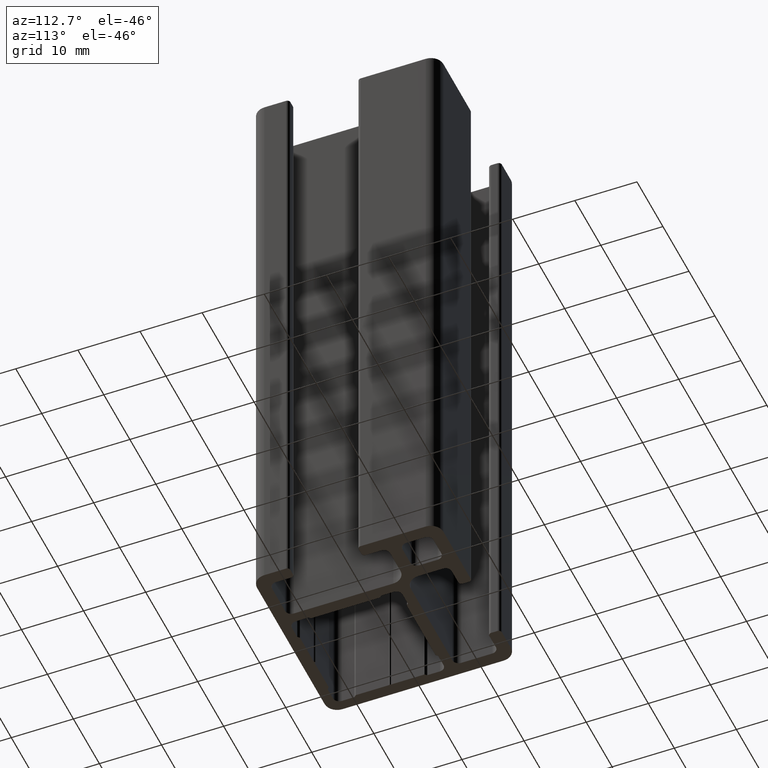
[diagram: clean part render]
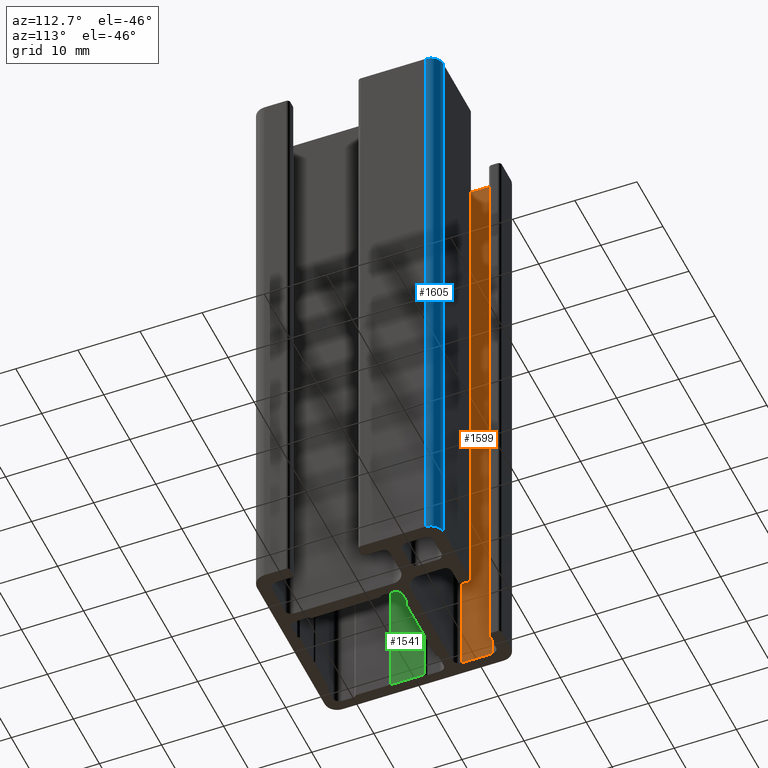
[diagram: same view with three faces highlighted in distinct colors, each labeled with its STEP entity id]
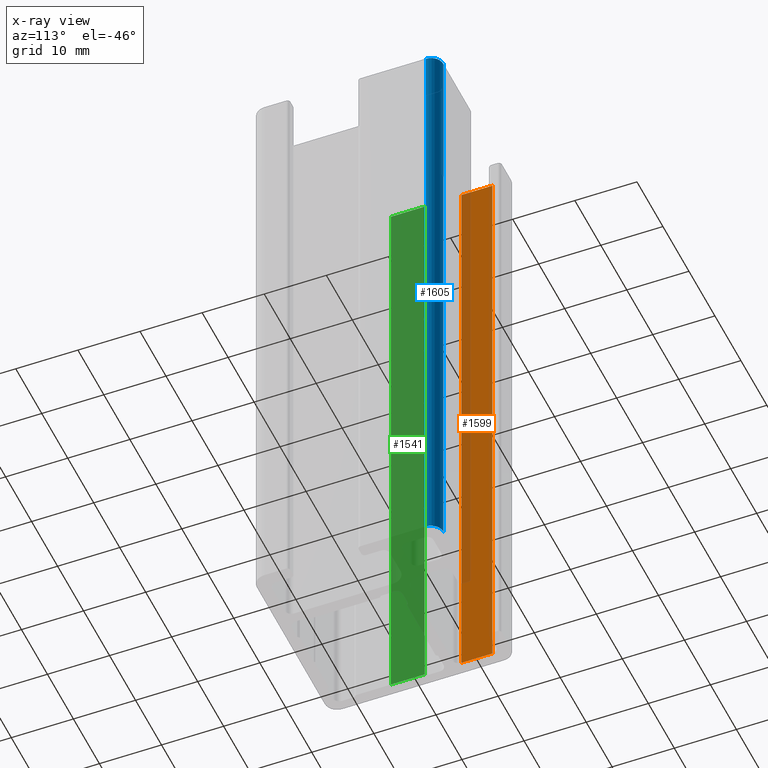
[diagram: x-ray of the same camera — body ghosted, the three highlighted faces saturated]
A machine part, auxiliary view with three faces highlighted in distinct colors.
The next image is the same camera in x-ray (body ghosted, the three faces saturated) — at least one of them is partly hidden behind the body in this view.
Their STEP definitions:

[orange] entity #1599 — the highlighted planar face has unit normal (-1, -0, 0).
#62=PLANE('',#1727);
#137=FACE_OUTER_BOUND('',#217,.T.);
#217=EDGE_LOOP('',(#1301,#1302,#1303,#1304));
#389=LINE('',#2607,#567);
#390=LINE('',#2611,#568);
#391=LINE('',#2613,#569);
#392=LINE('',#2614,#570);
#567=VECTOR('',#2129,100.);
#568=VECTOR('',#2134,5.);
#569=VECTOR('',#2135,100.);
#570=VECTOR('',#2136,5.);
#783=VERTEX_POINT('',#2604);
#784=VERTEX_POINT('',#2606);
#785=VERTEX_POINT('',#2610);
#786=VERTEX_POINT('',#2612);
#1002=EDGE_CURVE('',#784,#783,#389,.T.);
#1004=EDGE_CURVE('',#785,#783,#390,.T.);
#1005=EDGE_CURVE('',#786,#785,#391,.T.);
#1006=EDGE_CURVE('',#784,#786,#392,.T.);
#1301=ORIENTED_EDGE('',*,*,#1004,.F.);
#1302=ORIENTED_EDGE('',*,*,#1005,.F.);
#1303=ORIENTED_EDGE('',*,*,#1006,.F.);
#1304=ORIENTED_EDGE('',*,*,#1002,.T.);
#1599=ADVANCED_FACE('',(#137),#62,.F.);
#1727=AXIS2_PLACEMENT_3D('',#2609,#2132,#2133);
#2129=DIRECTION('',(0.,0.,1.));
#2132=DIRECTION('center_axis',(-1.,-4.44089209850062E-16,0.));
#2133=DIRECTION('ref_axis',(3.5527136788005E-16,-1.,0.));
#2134=DIRECTION('',(-4.44089209850062E-16,1.,0.));
#2135=DIRECTION('',(0.,0.,1.));
#2136=DIRECTION('',(4.44089209850062E-16,-1.,0.));
#2604=CARTESIAN_POINT('',(-13.,12.,100.));
#2606=CARTESIAN_POINT('',(-13.,12.,0.));
#2607=CARTESIAN_POINT('',(-13.,12.,0.));
#2609=CARTESIAN_POINT('Origin',(-13.,12.,0.));
#2610=CARTESIAN_POINT('',(-13.,7.,100.));
#2611=CARTESIAN_POINT('',(-13.,6.00000000019473,100.));
#2612=CARTESIAN_POINT('',(-13.,7.,0.));
#2613=CARTESIAN_POINT('',(-13.,7.,0.));
#2614=CARTESIAN_POINT('',(-13.,6.00000000019473,0.));

[blue] entity #1605 — the highlighted cylindrical surface (edge-blend (fillet) strip) has radius 2 mm, axis along (0, 0, 1).
#143=FACE_OUTER_BOUND('',#225,.T.);
#225=EDGE_LOOP('',(#1399,#1400,#1401,#1402));
#394=LINE('',#2622,#572);
#397=LINE('',#2628,#575);
#572=VECTOR('',#2146,100.);
#575=VECTOR('',#2151,100.);
#639=CIRCLE('',#1734,2.00000000847673);
#643=CIRCLE('',#1740,2.00000000847673);
#787=VERTEX_POINT('',#2619);
#788=VERTEX_POINT('',#2621);
#789=VERTEX_POINT('',#2625);
#790=VERTEX_POINT('',#2627);
#1010=EDGE_CURVE('',#787,#788,#394,.T.);
#1013=EDGE_CURVE('',#790,#789,#397,.T.);
#1015=EDGE_CURVE('',#789,#788,#639,.T.);
#1025=EDGE_CURVE('',#790,#787,#643,.T.);
#1399=ORIENTED_EDGE('',*,*,#1015,.T.);
#1400=ORIENTED_EDGE('',*,*,#1010,.F.);
#1401=ORIENTED_EDGE('',*,*,#1025,.F.);
#1402=ORIENTED_EDGE('',*,*,#1013,.T.);
#1529=CYLINDRICAL_SURFACE('',#1739,2.00000000847673);
#1605=ADVANCED_FACE('',(#143),#1529,.T.);
#1734=AXIS2_PLACEMENT_3D('',#2631,#2155,#2156);
#1739=AXIS2_PLACEMENT_3D('',#2649,#2171,#2172);
#1740=AXIS2_PLACEMENT_3D('',#2650,#2173,#2174);
#2146=DIRECTION('',(0.,0.,1.));
#2151=DIRECTION('',(0.,0.,1.));
#2155=DIRECTION('center_axis',(0.,0.,-1.));
#2156=DIRECTION('ref_axis',(-1.,3.84254848573491E-10,0.));
#2171=DIRECTION('center_axis',(0.,0.,1.));
#2172=DIRECTION('ref_axis',(-1.,3.84254848573491E-10,0.));
#2173=DIRECTION('center_axis',(0.,0.,-1.));
#2174=DIRECTION('ref_axis',(-1.,3.84254848573491E-10,0.));
#2619=CARTESIAN_POINT('',(14.9999999992264,12.9999999868977,0.));
#2621=CARTESIAN_POINT('',(14.9999999992264,12.9999999868977,100.));
#2622=CARTESIAN_POINT('',(14.9999999992264,12.9999999868977,0.));
#2625=CARTESIAN_POINT('',(12.9999999917377,14.9999999959286,100.));
#2627=CARTESIAN_POINT('',(12.9999999917377,14.9999999959286,0.));
#2628=CARTESIAN_POINT('',(12.9999999917377,14.9999999959286,0.));
#2631=CARTESIAN_POINT('Origin',(12.9999999909641,12.9999999876662,100.));
#2649=CARTESIAN_POINT('Origin',(12.9999999909641,12.9999999876662,0.));
#2650=CARTESIAN_POINT('Origin',(12.9999999909641,12.9999999876662,0.));

[green] entity #1541 — the highlighted planar face has unit normal (-1, -0, 0).
#23=PLANE('',#1631);
#79=FACE_OUTER_BOUND('',#159,.T.);
#159=EDGE_LOOP('',(#1069,#1070,#1071,#1072));
#251=LINE('',#2255,#429);
#252=LINE('',#2257,#430);
#253=LINE('',#2259,#431);
#254=LINE('',#2260,#432);
#429=VECTOR('',#1803,5.39999999999999);
#430=VECTOR('',#1804,100.);
#431=VECTOR('',#1805,5.39999999999999);
#432=VECTOR('',#1806,100.);
#663=VERTEX_POINT('',#2253);
#664=VERTEX_POINT('',#2254);
#665=VERTEX_POINT('',#2256);
#666=VERTEX_POINT('',#2258);
#827=EDGE_CURVE('',#663,#664,#251,.T.);
#828=EDGE_CURVE('',#665,#663,#252,.T.);
#829=EDGE_CURVE('',#666,#665,#253,.T.);
#830=EDGE_CURVE('',#666,#664,#254,.T.);
#1069=ORIENTED_EDGE('',*,*,#827,.F.);
#1070=ORIENTED_EDGE('',*,*,#828,.F.);
#1071=ORIENTED_EDGE('',*,*,#829,.F.);
#1072=ORIENTED_EDGE('',*,*,#830,.T.);
#1541=ADVANCED_FACE('',(#79),#23,.F.);
#1631=AXIS2_PLACEMENT_3D('',#2252,#1801,#1802);
#1801=DIRECTION('center_axis',(-1.,-8.22387425648266E-16,0.));
#1802=DIRECTION('ref_axis',(8.88178419700125E-16,-1.,0.));
#1803=DIRECTION('',(-8.22387425648266E-16,1.,0.));
#1804=DIRECTION('',(0.,0.,1.));
#1805=DIRECTION('',(8.22387425648266E-16,-1.,0.));
#1806=DIRECTION('',(0.,0.,1.));
#2252=CARTESIAN_POINT('Origin',(-13.1,1.05,0.));
#2253=CARTESIAN_POINT('',(-13.1,-4.34999999999999,100.));
#2254=CARTESIAN_POINT('',(-13.1,1.05,100.));
#2255=CARTESIAN_POINT('',(-13.1,0.525000000194726,100.));
#2256=CARTESIAN_POINT('',(-13.1,-4.34999999999999,0.));
#2257=CARTESIAN_POINT('',(-13.1,-4.34999999999999,0.));
#2258=CARTESIAN_POINT('',(-13.1,1.05,0.));
#2259=CARTESIAN_POINT('',(-13.1,0.525000000194726,0.));
#2260=CARTESIAN_POINT('',(-13.1,1.05,0.));